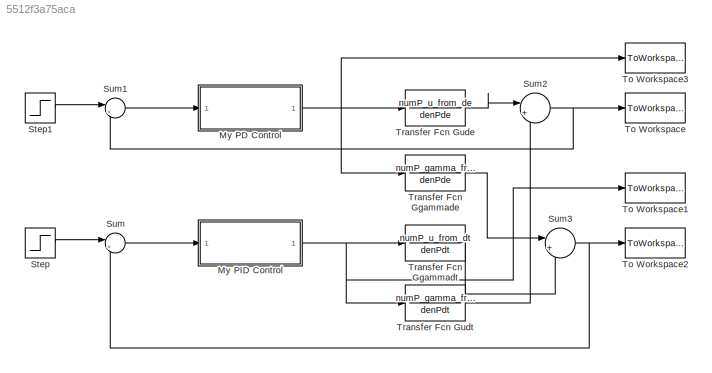
MODEL slx_5512f3a75aca
KIND model
CONFIG AbsTol = auto
CONFIG FixedStep = auto
CONFIG MaxStep = auto
CONFIG MinStep = auto
CONFIG RelTol = 1e-3
CONFIG SampleTimeConstraint = Unconstrained
CONFIG Solver = ode45
CONFIG SolverMode = Auto
CONFIG SolverName = ode45
CONFIG StartTime = 0.0
CONFIG StopTime = 10.0
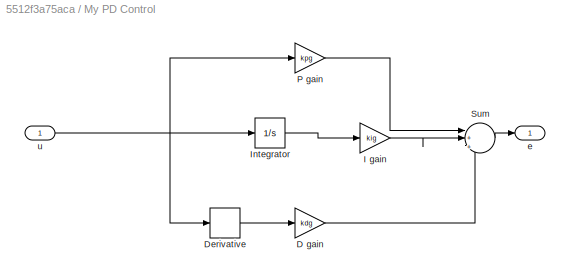
BLOCK [SubSystem] My PD Control
  Ports = [1, 1]
  RequestExecContextInheritance = off
  TreatAsAtomicUnit = on
  Variant = off
BLOCK [Gain] My PD Control/D gain
  Gain = kdg
  OutDataTypeStr = Inherit: Inherit via internal rule
  ParamDataTypeStr = Inherit: Inherit via internal rule
  SaturateOnIntegerOverflow = off
BLOCK [Derivative] My PD Control/Derivative
BLOCK [Gain] My PD Control/I gain
  Gain = kig
  OutDataTypeStr = Inherit: Inherit via internal rule
  ParamDataTypeStr = Inherit: Inherit via internal rule
  SaturateOnIntegerOverflow = off
BLOCK [Integrator] My PD Control/Integrator
  Ports = [1, 1]
BLOCK [Gain] My PD Control/P gain
  Gain = kpg
  OutDataTypeStr = Inherit: Inherit via internal rule
  ParamDataTypeStr = Inherit: Inherit via internal rule
  SaturateOnIntegerOverflow = off
BLOCK [Sum] My PD Control/Sum
  IconShape = round
  InputSameDT = off
  Inputs = |+|+|+
  OutDataTypeStr = Inherit: Inherit via internal rule
  Ports = [3, 1]
  SaturateOnIntegerOverflow = off
BLOCK [Outport] My PD Control/e
  IconDisplay = Port number
BLOCK [Inport] My PD Control/u
  IconDisplay = Port number
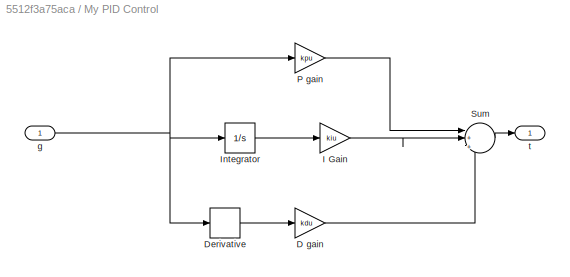
BLOCK [SubSystem] My PID Control
  Ports = [1, 1]
  RequestExecContextInheritance = off
  TreatAsAtomicUnit = on
  Variant = off
BLOCK [Gain] My PID Control/D gain
  Gain = kdu
  OutDataTypeStr = Inherit: Inherit via internal rule
  ParamDataTypeStr = Inherit: Inherit via internal rule
  SaturateOnIntegerOverflow = off
BLOCK [Derivative] My PID Control/Derivative
BLOCK [Gain] My PID Control/I Gain
  Gain = kiu
  OutDataTypeStr = Inherit: Inherit via internal rule
  ParamDataTypeStr = Inherit: Inherit via internal rule
  SaturateOnIntegerOverflow = off
BLOCK [Integrator] My PID Control/Integrator
  Ports = [1, 1]
BLOCK [Gain] My PID Control/P gain
  Gain = kpu
  OutDataTypeStr = Inherit: Inherit via internal rule
  ParamDataTypeStr = Inherit: Inherit via internal rule
  SaturateOnIntegerOverflow = off
BLOCK [Sum] My PID Control/Sum
  IconShape = round
  InputSameDT = off
  Inputs = |+|+|+
  OutDataTypeStr = Inherit: Inherit via internal rule
  Ports = [3, 1]
  SaturateOnIntegerOverflow = off
BLOCK [Inport] My PID Control/g
  IconDisplay = Port number
BLOCK [Outport] My PID Control/t
  IconDisplay = Port number
BLOCK [Step] Step
  After = u_com
  SampleTime = 0
  Time = 0
BLOCK [Step] Step1
  After = gamma_com
  SampleTime = 0
  Time = 0
BLOCK [Sum] Sum
  IconShape = round
  InputSameDT = off
  Inputs = |+-
  OutDataTypeStr = Inherit: Inherit via internal rule
  Ports = [2, 1]
  SaturateOnIntegerOverflow = off
BLOCK [Sum] Sum1
  IconShape = round
  InputSameDT = off
  Inputs = |+-
  OutDataTypeStr = Inherit: Inherit via internal rule
  Ports = [2, 1]
  SaturateOnIntegerOverflow = off
BLOCK [Sum] Sum2
  IconShape = round
  InputSameDT = off
  Inputs = |+|+
  OutDataTypeStr = Inherit: Inherit via internal rule
  Ports = [2, 1]
  SaturateOnIntegerOverflow = off
BLOCK [Sum] Sum3
  IconShape = round
  InputSameDT = off
  Inputs = |+|+
  OutDataTypeStr = Inherit: Inherit via internal rule
  Ports = [2, 1]
  SaturateOnIntegerOverflow = off
BLOCK [ToWorkspace] To Workspace
  MaxDataPoints = inf
  Ports = [1]
  SampleTime = -1
  SaveFormat = Timeseries
  VariableName = u
BLOCK [ToWorkspace] To Workspace1
  MaxDataPoints = inf
  Ports = [1]
  SampleTime = -1
  SaveFormat = Timeseries
  VariableName = throt
BLOCK [ToWorkspace] To Workspace2
  MaxDataPoints = inf
  Ports = [1]
  SampleTime = -1
  SaveFormat = Timeseries
  VariableName = gamma
BLOCK [ToWorkspace] To Workspace3
  MaxDataPoints = inf
  Ports = [1]
  SampleTime = -1
  SaveFormat = Timeseries
  VariableName = elev
BLOCK [TransferFcn] Transfer Fcn Ggammade
  Denominator = denPde
  Numerator = numP_gamma_from_de
BLOCK [TransferFcn] Transfer Fcn Ggammadt
  Denominator = denPdt
  Numerator = numP_u_from_dt
BLOCK [TransferFcn] Transfer Fcn Gude
  Denominator = denPde
  Numerator = numP_u_from_de
BLOCK [TransferFcn] Transfer Fcn Gudt
  Denominator = denPdt
  Numerator = numP_gamma_from_dt
LINE My PD Control/D gain:1 -> My PD Control/Sum:3
LINE My PD Control/Derivative:1 -> My PD Control/D gain:1
LINE My PD Control/I gain:1 -> My PD Control/Sum:2
LINE My PD Control/Integrator:1 -> My PD Control/I gain:1
LINE My PD Control/P gain:1 -> My PD Control/Sum:1
LINE My PD Control/Sum:1 -> My PD Control/e:1
NET My PD Control/u:1 -> My PD Control/Derivative:1, My PD Control/Integrator:1, My PD Control/P gain:1
NET My PD Control:1 -> To Workspace3:1, Transfer Fcn Ggammade:1, Transfer Fcn Gude:1
LINE My PID Control/D gain:1 -> My PID Control/Sum:3
LINE My PID Control/Derivative:1 -> My PID Control/D gain:1
LINE My PID Control/I Gain:1 -> My PID Control/Sum:2
LINE My PID Control/Integrator:1 -> My PID Control/I Gain:1
LINE My PID Control/P gain:1 -> My PID Control/Sum:1
LINE My PID Control/Sum:1 -> My PID Control/t:1
NET My PID Control/g:1 -> My PID Control/Derivative:1, My PID Control/Integrator:1, My PID Control/P gain:1
NET My PID Control:1 -> To Workspace1:1, Transfer Fcn Ggammadt:1, Transfer Fcn Gudt:1
LINE Step1:1 -> Sum1:1
LINE Step:1 -> Sum:1
LINE Sum1:1 -> My PD Control:1
NET Sum2:1 -> Sum1:2, To Workspace:1
NET Sum3:1 -> Sum:2, To Workspace2:1
LINE Sum:1 -> My PID Control:1
LINE Transfer Fcn Ggammade:1 -> Sum3:1
LINE Transfer Fcn Ggammadt:1 -> Sum3:2
LINE Transfer Fcn Gude:1 -> Sum2:1
LINE Transfer Fcn Gudt:1 -> Sum2:2
note: NET lines group one-source signal fan-out (src -> all destinations, sorted); 1:1 wires keep LINE
